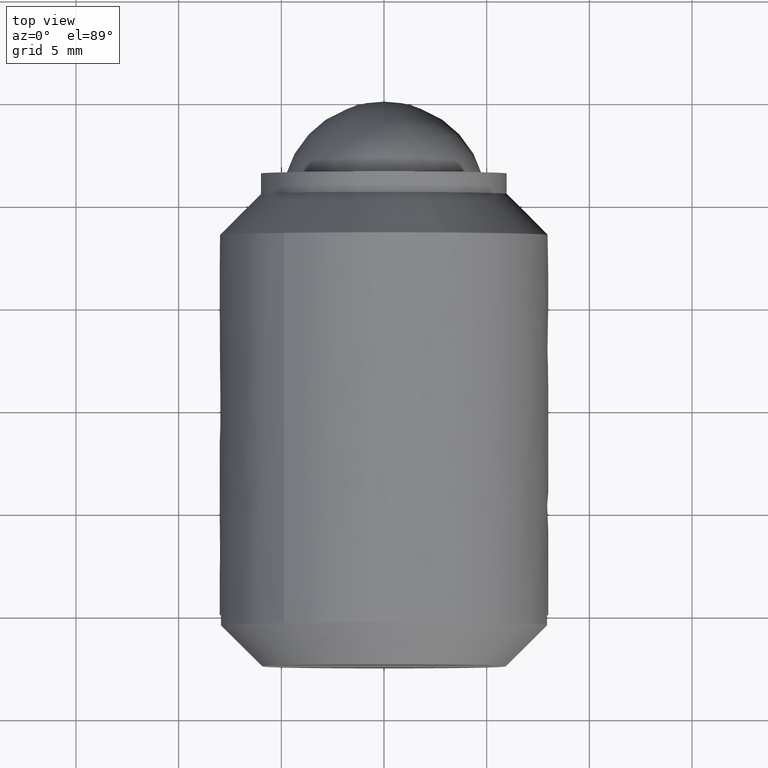
[diagram: clean part render]
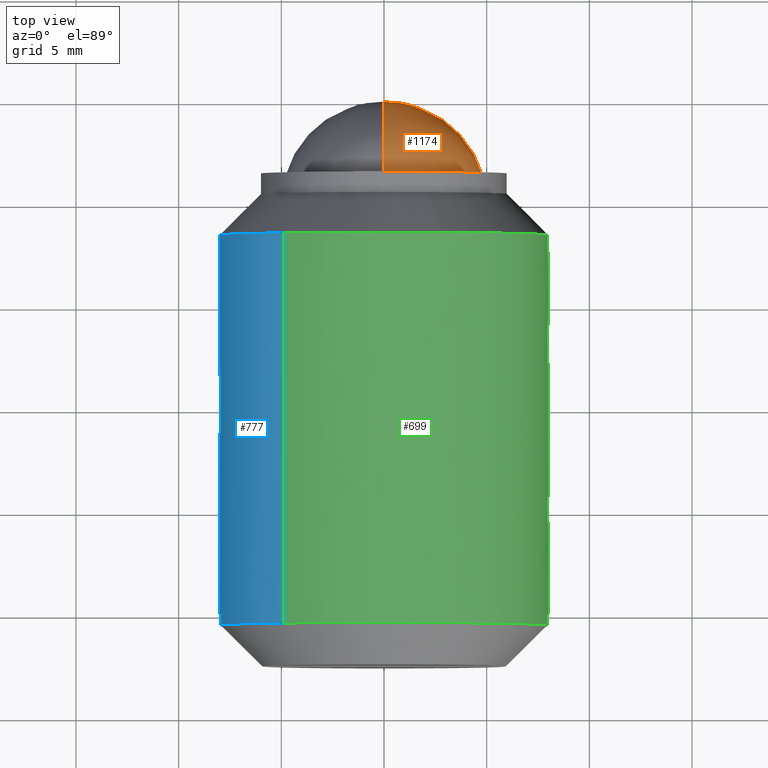
[diagram: same view with three faces highlighted in distinct colors, each labeled with its STEP entity id]
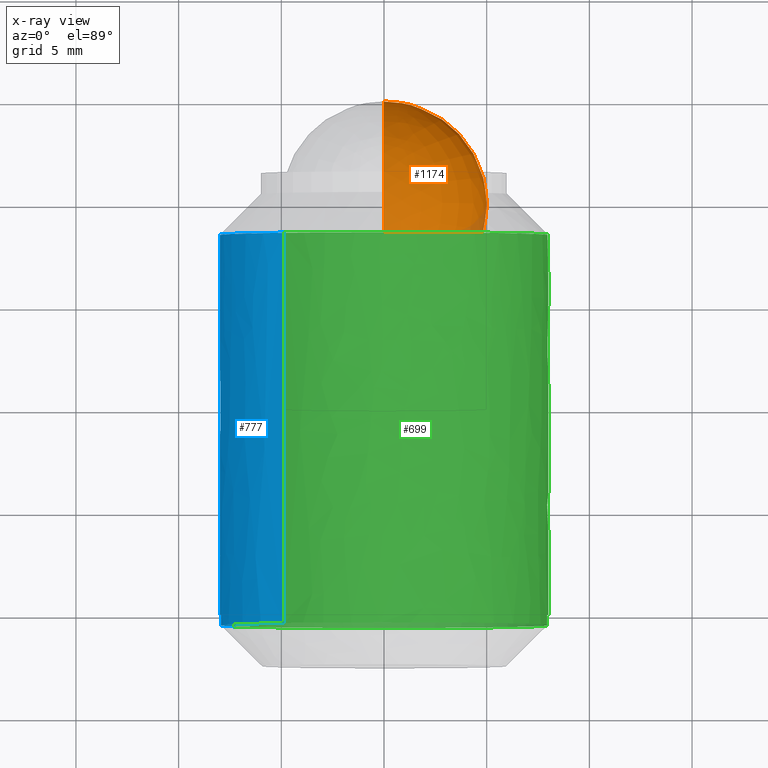
[diagram: x-ray of the same camera — body ghosted, the three highlighted faces saturated]
A machine part, top view with three faces highlighted in distinct colors.
The next image is the same camera in x-ray (body ghosted, the three faces saturated) — at least one of them is partly hidden behind the body in this view.
Their STEP definitions:

[orange] entity #1174 — the highlighted face is a freeform B-spline surface patch.
#1089=CARTESIAN_POINT('',(0.0,0.0,1.500143E-015));
#1090=VERTEX_POINT('',#1089);
#1091=CARTESIAN_POINT('',(0.0,-10.0,1.500143E-015));
#1092=VERTEX_POINT('',#1091);
#1093=CARTESIAN_POINT('',(0.0,0.0,1.500143E-015));
#1094=CARTESIAN_POINT('',(0.0,0.0,-4.999999999999997));
#1095=CARTESIAN_POINT('',(0.0,-5.0,-4.999999999999998));
#1096=CARTESIAN_POINT('',(0.0,-10.000000000000002,-4.999999999999997));
#1097=CARTESIAN_POINT('',(0.0,-10.0,1.500143E-015));
#1105=(BOUNDED_CURVE()B_SPLINE_CURVE(2,(#1093,#1094,#1095,#1096,#1097),.UNSPECIFIED.,.F.,.U.)B_SPLINE_CURVE_WITH_KNOTS((3,2,3),(0.0,0.500000000000000,1.0),.UNSPECIFIED.)CURVE()GEOMETRIC_REPRESENTATION_ITEM()RATIONAL_B_SPLINE_CURVE((1.0,0.707106781186548,1.0,0.707106781186548,1.0))REPRESENTATION_ITEM(''));
#1106=EDGE_CURVE('',#1090,#1092,#1105,.T.);
#1108=CARTESIAN_POINT('',(0.0,0.0,1.500143E-015));
#1109=CARTESIAN_POINT('',(0.0,0.0,5.000000000000002));
#1110=CARTESIAN_POINT('',(0.0,-5.0,5.000000000000002));
#1111=CARTESIAN_POINT('',(0.0,-10.000000000000002,5.000000000000002));
#1112=CARTESIAN_POINT('',(0.0,-10.0,1.500143E-015));
#1120=(BOUNDED_CURVE()B_SPLINE_CURVE(2,(#1108,#1109,#1110,#1111,#1112),.UNSPECIFIED.,.F.,.U.)B_SPLINE_CURVE_WITH_KNOTS((3,2,3),(0.0,0.500000000000000,1.0),.UNSPECIFIED.)CURVE()GEOMETRIC_REPRESENTATION_ITEM()RATIONAL_B_SPLINE_CURVE((1.0,0.707106781186548,1.0,0.707106781186548,1.0))REPRESENTATION_ITEM(''));
#1121=EDGE_CURVE('',#1090,#1092,#1120,.T.);
#1126=CARTESIAN_POINT('',(-1.875000000000000,-8.277527650531722,-3.277527650531722));
#1127=CARTESIAN_POINT('',(-1.226415094339623,-7.968326928783450,-3.957769238377928));
#1128=CARTESIAN_POINT('',(-0.238095238095238,-6.248581962107323,-4.994327848429291));
#1129=CARTESIAN_POINT('',(-0.238095238095238,-3.751418037892677,-4.994327848429291));
#1130=CARTESIAN_POINT('',(-1.226415094339623,-2.031673071216554,-3.957769238377928));
#1131=CARTESIAN_POINT('',(-1.875000000000000,-1.722472349468278,-3.277527650531722));
#1132=CARTESIAN_POINT('',(-1.226415094339623,-8.957769238377928,-2.968326928783446));
#1133=CARTESIAN_POINT('',(-0.238095238095238,-8.745745886321966,-3.745745886321967));
#1134=CARTESIAN_POINT('',(1.451612903225807,-6.691627174467986,-5.074881523403956));
#1135=CARTESIAN_POINT('',(1.451612903225807,-3.308372825532014,-5.074881523403956));
#1136=CARTESIAN_POINT('',(-0.238095238095238,-1.254254113678031,-3.745745886321967));
#1137=CARTESIAN_POINT('',(-1.226415094339623,-1.042230761622072,-2.968326928783446));
#1138=CARTESIAN_POINT('',(-0.238095238095238,-9.994327848429290,-1.248581962107321));
#1139=CARTESIAN_POINT('',(1.451612903225807,-10.074881523403961,-1.691627174467985));
#1140=CARTESIAN_POINT('',(4.999999999999998,-7.622022120425378,-2.622022120425377));
#1141=CARTESIAN_POINT('',(4.999999999999998,-2.377977879574622,-2.622022120425377));
#1142=CARTESIAN_POINT('',(1.451612903225807,0.074881523403958,-1.691627174467985));
#1143=CARTESIAN_POINT('',(-0.238095238095238,-0.005672151570709,-1.248581962107321));
#1144=CARTESIAN_POINT('',(-0.238095238095238,-9.994327848429290,1.248581962107325));
#1145=CARTESIAN_POINT('',(1.451612903225807,-10.074881523403961,1.691627174467988));
#1146=CARTESIAN_POINT('',(4.999999999999998,-7.622022120425378,2.622022120425380));
#1147=CARTESIAN_POINT('',(4.999999999999998,-2.377977879574622,2.622022120425380));
#1148=CARTESIAN_POINT('',(1.451612903225807,0.074881523403958,1.691627174467988));
#1149=CARTESIAN_POINT('',(-0.238095238095238,-0.005672151570709,1.248581962107325));
#1150=CARTESIAN_POINT('',(-1.226415094339623,-8.957769238377928,2.968326928783448));
#1151=CARTESIAN_POINT('',(-0.238095238095238,-8.745745886321966,3.745745886321970));
#1152=CARTESIAN_POINT('',(1.451612903225807,-6.691627174467986,5.074881523403960));
#1153=CARTESIAN_POINT('',(1.451612903225807,-3.308372825532014,5.074881523403960));
#1154=CARTESIAN_POINT('',(-0.238095238095238,-1.254254113678031,3.745745886321970));
#1155=CARTESIAN_POINT('',(-1.226415094339623,-1.042230761622072,2.968326928783448));
#1156=CARTESIAN_POINT('',(-1.875000000000000,-8.277527650531722,3.277527650531725));
#1157=CARTESIAN_POINT('',(-1.226415094339623,-7.968326928783450,3.957769238377932));
#1158=CARTESIAN_POINT('',(-0.238095238095238,-6.248581962107323,4.994327848429295));
#1159=CARTESIAN_POINT('',(-0.238095238095238,-3.751418037892677,4.994327848429295));
#1160=CARTESIAN_POINT('',(-1.226415094339623,-2.031673071216554,3.957769238377932));
#1161=CARTESIAN_POINT('',(-1.875000000000000,-1.722472349468278,3.277527650531725));
#1169=(BOUNDED_SURFACE()B_SPLINE_SURFACE(2,2,((#1126,#1132,#1138,#1144,#1150,#1156),(#1127,#1133,#1139,#1145,#1151,#1157),(#1128,#1134,#1140,#1146,#1152,#1158),(#1129,#1135,#1141,#1147,#1153,#1159),(#1130,#1136,#1142,#1148,#1154,#1160),(#1131,#1137,#1143,#1149,#1155,#1161)),.UNSPECIFIED.,.F.,.F.,.U.)B_SPLINE_SURFACE_WITH_KNOTS((3,1,1,1,3),(3,1,1,1,3),(0.0,4.610148783165501,9.220297566331002,13.830446349496500,18.440595132662001),(0.0,4.610148783165501,9.220297566331002,13.830446349496500,18.440595132662001),.UNSPECIFIED.)GEOMETRIC_REPRESENTATION_ITEM()RATIONAL_B_SPLINE_SURFACE(((3.200000000000000,2.650000000000000,2.100000000000000,2.100000000000000,2.650000000000000,3.200000000000000),(2.650000000000000,2.100000000000000,1.550000000000000,1.550000000000000,2.100000000000000,2.650000000000000),(2.100000000000000,1.550000000000000,1.0,1.0,1.550000000000000,2.100000000000000),(2.100000000000000,1.550000000000000,1.0,1.0,1.550000000000000,2.100000000000000),(2.650000000000000,2.100000000000000,1.550000000000000,1.550000000000000,2.100000000000000,2.650000000000000),(3.200000000000000,2.650000000000000,2.100000000000000,2.100000000000000,2.650000000000000,3.200000000000000)))REPRESENTATION_ITEM('')SURFACE());
#1170=ORIENTED_EDGE('',*,*,#1121,.T.);
#1171=ORIENTED_EDGE('',*,*,#1106,.F.);
#1172=EDGE_LOOP('',(#1170,#1171));
#1173=FACE_OUTER_BOUND('',#1172,.T.);
#1174=ADVANCED_FACE('',(#1173),#1169,.T.);

[blue] entity #777 — the highlighted face is a freeform B-spline surface patch.
#284=CARTESIAN_POINT('',(-7.985078387376499,-6.500000000002911,0.488388316301027));
#285=VERTEX_POINT('',#284);
#291=CARTESIAN_POINT('',(-4.870091037611219,-6.500000000000000,6.346827025008528));
#292=VERTEX_POINT('',#291);
#293=CARTESIAN_POINT('',(-4.870091037611219,-6.500000000000000,6.346827025008528));
#294=CARTESIAN_POINT('',(-7.762506972072580,-6.500000000000001,4.127398789254261));
#295=CARTESIAN_POINT('',(-7.985078387376499,-6.500000000002911,0.488388316301027));
#303=(BOUNDED_CURVE()B_SPLINE_CURVE(2,(#293,#294,#295),.UNSPECIFIED.,.F.,.U.)B_SPLINE_CURVE_WITH_KNOTS((3,3),(0.605220491557171,0.739332962241018),.UNSPECIFIED.)CURVE()GEOMETRIC_REPRESENTATION_ITEM()RATIONAL_B_SPLINE_CURVE((0.857220216439686,0.832357764713392,0.976072041671164))REPRESENTATION_ITEM(''));
#304=EDGE_CURVE('',#292,#285,#303,.T.);
#401=CARTESIAN_POINT('',(-7.310556275005265,-6.500000000000000,-3.248963981022425));
#402=VERTEX_POINT('',#401);
#416=CARTESIAN_POINT('',(-7.985078387376499,-6.500000000002911,0.488388316301027));
#417=CARTESIAN_POINT('',(-8.0,-6.500000000000000,0.244422106410766));
#418=CARTESIAN_POINT('',(-8.0,-6.500000000000000,-1.806294E-015));
#419=CARTESIAN_POINT('',(-8.0,-6.500000000000001,-1.697633287639437));
#420=CARTESIAN_POINT('',(-7.310556275005265,-6.500000000000000,-3.248963981022425));
#428=(BOUNDED_CURVE()B_SPLINE_CURVE(2,(#416,#417,#418,#419,#420),.UNSPECIFIED.,.F.,.U.)B_SPLINE_CURVE_WITH_KNOTS((3,2,3),(0.739332962241018,0.750000000000000,0.818963736983760),.UNSPECIFIED.)CURVE()GEOMETRIC_REPRESENTATION_ITEM()RATIONAL_B_SPLINE_CURVE((0.976072041671165,0.987502787902268,1.0,0.919203956373688,0.882983889563164))REPRESENTATION_ITEM(''));
#429=EDGE_CURVE('',#285,#402,#428,.T.);
#622=CARTESIAN_POINT('',(-4.870091377275460,-25.500000000000000,6.346826764375027));
#623=VERTEX_POINT('',#622);
#624=CARTESIAN_POINT('',(-4.870091037611219,-6.500000000000000,6.346827025008528));
#625=CARTESIAN_POINT('',(-4.870091377275460,-25.500000000000000,6.346826764375027));
#626=QUASI_UNIFORM_CURVE('',1,(#624,#625),.UNSPECIFIED.,.F.,.U.);
#627=EDGE_CURVE('',#292,#623,#626,.T.);
#675=CARTESIAN_POINT('',(-7.310557780470655,-25.500000000000000,-3.248960593541331));
#676=VERTEX_POINT('',#675);
#692=CARTESIAN_POINT('',(-7.310556275005265,-6.500000000000000,-3.248963981022425));
#693=CARTESIAN_POINT('',(-7.310557780470655,-25.500000000000000,-3.248960593541331));
#694=QUASI_UNIFORM_CURVE('',1,(#692,#693),.UNSPECIFIED.,.F.,.U.);
#695=EDGE_CURVE('',#402,#676,#694,.T.);
#700=CARTESIAN_POINT('',(-4.870091432069762,-6.024999999999999,6.346826722329879));
#701=CARTESIAN_POINT('',(-9.870057291562189,-6.025000000000000,2.510217979367925));
#702=CARTESIAN_POINT('',(-7.310556180406904,-6.024999999999999,-3.248964193880011));
#703=CARTESIAN_POINT('',(-4.870091432069762,-25.986875000000001,6.346826722329879));
#704=CARTESIAN_POINT('',(-9.870057291562189,-25.986875000000005,2.510217979367925));
#705=CARTESIAN_POINT('',(-7.310556180406904,-25.986875000000001,-3.248964193880011));
#713=(BOUNDED_SURFACE()B_SPLINE_SURFACE(2,1,((#700,#703),(#701,#704),(#702,#705)),.UNSPECIFIED.,.F.,.F.,.U.)B_SPLINE_SURFACE_WITH_KNOTS((3,3),(2,2),(0.0,11.085370664284779),(0.0,19.961874999999999),.UNSPECIFIED.)GEOMETRIC_REPRESENTATION_ITEM()RATIONAL_B_SPLINE_SURFACE(((1.0,1.0),(0.753969696196700,0.753969696196700),(0.921270302782944,0.921270302782944)))REPRESENTATION_ITEM('')SURFACE());
#714=ORIENTED_EDGE('',*,*,#304,.T.);
#715=ORIENTED_EDGE('',*,*,#429,.T.);
#716=ORIENTED_EDGE('',*,*,#695,.T.);
#717=CARTESIAN_POINT('',(-7.937253933193770,-25.500000000000000,-1.0));
#718=VERTEX_POINT('',#717);
#719=CARTESIAN_POINT('',(-7.937253933193772,-25.500000000000000,-1.000000000000001));
#720=CARTESIAN_POINT('',(-7.789759942857692,-25.500000000000004,-2.170697254917499));
#721=CARTESIAN_POINT('',(-7.310557780470655,-25.500000000000000,-3.248960593541332));
#729=(BOUNDED_CURVE()B_SPLINE_CURVE(2,(#719,#720,#721),.UNSPECIFIED.,.F.,.U.)B_SPLINE_CURVE_WITH_KNOTS((3,3),(0.0,0.105607617248739),.UNSPECIFIED.)CURVE()GEOMETRIC_REPRESENTATION_ITEM()RATIONAL_B_SPLINE_CURVE((1.0,0.947196191375630,0.916698320393173))REPRESENTATION_ITEM(''));
#730=EDGE_CURVE('',#718,#676,#729,.T.);
#731=ORIENTED_EDGE('',*,*,#730,.F.);
#732=CARTESIAN_POINT('',(-7.937253933193770,-25.0,-1.0));
#733=VERTEX_POINT('',#732);
#734=CARTESIAN_POINT('',(-7.937253933193770,-25.0,-1.0));
#735=CARTESIAN_POINT('',(-7.937253933193770,-25.500000000000000,-1.0));
#736=QUASI_UNIFORM_CURVE('',1,(#734,#735),.UNSPECIFIED.,.F.,.U.);
#737=EDGE_CURVE('',#733,#718,#736,.T.);
#738=ORIENTED_EDGE('',*,*,#737,.F.);
#739=CARTESIAN_POINT('',(-7.937253933193770,-25.0,1.0));
#740=VERTEX_POINT('',#739);
#741=CARTESIAN_POINT('',(-7.937253933193772,-25.0,1.000000000000001));
#742=CARTESIAN_POINT('',(-8.063242090863515,-24.999999999999996,1.084202E-015));
#743=CARTESIAN_POINT('',(-7.937253933193772,-25.0,-1.000000000000000));
#751=(BOUNDED_CURVE()B_SPLINE_CURVE(2,(#741,#742,#743),.UNSPECIFIED.,.F.,.U.)CURVE()GEOMETRIC_REPRESENTATION_ITEM()QUASI_UNIFORM_CURVE()RATIONAL_B_SPLINE_CURVE((1.0,0.992156741649221,1.0))REPRESENTATION_ITEM(''));
#752=EDGE_CURVE('',#740,#733,#751,.T.);
#753=ORIENTED_EDGE('',*,*,#752,.F.);
#754=CARTESIAN_POINT('',(-7.937253933193770,-25.500000000000000,1.0));
#755=VERTEX_POINT('',#754);
#756=CARTESIAN_POINT('',(-7.937253933193770,-25.0,1.0));
#757=CARTESIAN_POINT('',(-7.937253933193770,-25.500000000000000,1.0));
#758=QUASI_UNIFORM_CURVE('',1,(#756,#757),.UNSPECIFIED.,.F.,.U.);
#759=EDGE_CURVE('',#740,#755,#758,.T.);
#760=ORIENTED_EDGE('',*,*,#759,.T.);
#761=CARTESIAN_POINT('',(-4.870091377275460,-25.500000000000004,6.346826764375028));
#762=CARTESIAN_POINT('',(-7.519772659777563,-25.500000000000007,4.313654879457524));
#763=CARTESIAN_POINT('',(-7.937253933193772,-25.500000000000000,1.0));
#771=(BOUNDED_CURVE()B_SPLINE_CURVE(2,(#761,#762,#763),.UNSPECIFIED.,.F.,.U.)B_SPLINE_CURVE_WITH_KNOTS((3,3),(0.727424371635832,1.0),.UNSPECIFIED.)CURVE()GEOMETRIC_REPRESENTATION_ITEM()RATIONAL_B_SPLINE_CURVE((0.876019317906473,0.863712185723817,1.0))REPRESENTATION_ITEM(''));
#772=EDGE_CURVE('',#623,#755,#771,.T.);
#773=ORIENTED_EDGE('',*,*,#772,.F.);
#774=ORIENTED_EDGE('',*,*,#627,.F.);
#775=EDGE_LOOP('',(#714,#715,#716,#731,#738,#753,#760,#773,#774));
#776=FACE_OUTER_BOUND('',#775,.T.);
#777=ADVANCED_FACE('',(#776),#713,.T.);

[green] entity #699 — the highlighted face is a freeform B-spline surface patch.
#291=CARTESIAN_POINT('',(-4.870091037611219,-6.500000000000000,6.346827025008528));
#292=VERTEX_POINT('',#291);
#306=CARTESIAN_POINT('',(0.0,-6.500000000000000,7.999999999999998));
#307=VERTEX_POINT('',#306);
#308=CARTESIAN_POINT('',(0.0,-6.500000000000000,7.999999999999998));
#309=CARTESIAN_POINT('',(-2.715633516410479,-6.499999999999999,7.999999999999999));
#310=CARTESIAN_POINT('',(-4.870091037611219,-6.500000000000000,6.346827025008528));
#318=(BOUNDED_CURVE()B_SPLINE_CURVE(2,(#308,#309,#310),.UNSPECIFIED.,.F.,.U.)B_SPLINE_CURVE_WITH_KNOTS((3,3),(0.500000000000000,0.605220491557170),.UNSPECIFIED.)CURVE()GEOMETRIC_REPRESENTATION_ITEM()RATIONAL_B_SPLINE_CURVE((1.0,0.876726526170748,0.857220216439686))REPRESENTATION_ITEM(''));
#319=EDGE_CURVE('',#307,#292,#318,.T.);
#321=CARTESIAN_POINT('',(2.812943795133173,-6.500000000000057,7.489148630213096));
#322=VERTEX_POINT('',#321);
#323=CARTESIAN_POINT('',(2.812943795133174,-6.500000000000057,7.489148630213097));
#324=CARTESIAN_POINT('',(1.452859088534721,-6.500000000000001,7.999999999999997));
#325=CARTESIAN_POINT('',(0.0,-6.500000000000000,7.999999999999998));
#333=(BOUNDED_CURVE()B_SPLINE_CURVE(2,(#323,#324,#325),.UNSPECIFIED.,.F.,.U.)B_SPLINE_CURVE_WITH_KNOTS((3,3),(0.440284170898885,0.500000000000000),.UNSPECIFIED.)CURVE()GEOMETRIC_REPRESENTATION_ITEM()RATIONAL_B_SPLINE_CURVE((0.893499554635736,0.930038554401842,1.0))REPRESENTATION_ITEM(''));
#334=EDGE_CURVE('',#322,#307,#333,.T.);
#384=CARTESIAN_POINT('',(0.0,-6.500000000000000,-8.000000000000002));
#385=VERTEX_POINT('',#384);
#386=CARTESIAN_POINT('',(0.0,-6.500000000000000,-8.000000000000002));
#387=CARTESIAN_POINT('',(8.0,-6.500000000000001,-8.000000000000002));
#388=CARTESIAN_POINT('',(8.0,-6.500000000000000,-1.806294E-015));
#389=CARTESIAN_POINT('',(8.0,-6.500000000000000,5.540876765554441));
#390=CARTESIAN_POINT('',(2.812943795133173,-6.500000000000057,7.489148630213096));
#398=(BOUNDED_CURVE()B_SPLINE_CURVE(2,(#386,#387,#388,#389,#390),.UNSPECIFIED.,.F.,.U.)B_SPLINE_CURVE_WITH_KNOTS((3,2,3),(0.0,0.250000000000000,0.440284170898885),.UNSPECIFIED.)CURVE()GEOMETRIC_REPRESENTATION_ITEM()RATIONAL_B_SPLINE_CURVE((1.0,0.707106781186548,1.0,0.777068226784706,0.893499554635736))REPRESENTATION_ITEM(''));
#399=EDGE_CURVE('',#385,#322,#398,.T.);
#401=CARTESIAN_POINT('',(-7.310556275005265,-6.500000000000000,-3.248963981022425));
#402=VERTEX_POINT('',#401);
#403=CARTESIAN_POINT('',(-7.310556275005265,-6.500000000000001,-3.248963981022424));
#404=CARTESIAN_POINT('',(-5.199096749012838,-6.500000000000000,-8.000000000000002));
#405=CARTESIAN_POINT('',(0.0,-6.500000000000000,-8.000000000000002));
#413=(BOUNDED_CURVE()B_SPLINE_CURVE(2,(#403,#404,#405),.UNSPECIFIED.,.F.,.U.)B_SPLINE_CURVE_WITH_KNOTS((3,3),(0.818963736983759,1.0),.UNSPECIFIED.)CURVE()GEOMETRIC_REPRESENTATION_ITEM()RATIONAL_B_SPLINE_CURVE((0.882983889563165,0.787902824812858,1.0))REPRESENTATION_ITEM(''));
#414=EDGE_CURVE('',#402,#385,#413,.T.);
#592=CARTESIAN_POINT('',(-7.310556180406904,-6.024999999999999,-3.248964193880011));
#593=CARTESIAN_POINT('',(-6.924905108886705,-6.025000000000000,-4.116725011217804));
#594=CARTESIAN_POINT('',(-6.346826722329880,-6.024999999999999,-4.870091432069764));
#595=CARTESIAN_POINT('',(-1.476735290260119,-6.024999999999999,-11.216918154399643));
#596=CARTESIAN_POINT('',(4.870091432069762,-6.024999999999999,-6.346826722329882));
#597=CARTESIAN_POINT('',(11.216918154399643,-6.024999999999999,-1.476735290260121));
#598=CARTESIAN_POINT('',(6.346826722329880,-6.024999999999999,4.870091432069760));
#599=CARTESIAN_POINT('',(1.476735290260119,-6.024999999999999,11.216918154399639));
#600=CARTESIAN_POINT('',(-4.870091432069762,-6.024999999999999,6.346826722329879));
#601=CARTESIAN_POINT('',(-7.310556180406904,-25.986875000000001,-3.248964193880011));
#602=CARTESIAN_POINT('',(-6.924905108886705,-25.986875000000005,-4.116725011217804));
#603=CARTESIAN_POINT('',(-6.346826722329880,-25.986875000000001,-4.870091432069764));
#604=CARTESIAN_POINT('',(-1.476735290260119,-25.986874999999994,-11.216918154399643));
#605=CARTESIAN_POINT('',(4.870091432069762,-25.986875000000001,-6.346826722329882));
#606=CARTESIAN_POINT('',(11.216918154399643,-25.986874999999994,-1.476735290260121));
#607=CARTESIAN_POINT('',(6.346826722329880,-25.986875000000001,4.870091432069760));
#608=CARTESIAN_POINT('',(1.476735290260119,-25.986874999999994,11.216918154399639));
#609=CARTESIAN_POINT('',(-4.870091432069762,-25.986875000000001,6.346826722329879));
#617=(BOUNDED_SURFACE()B_SPLINE_SURFACE(2,1,((#592,#601),(#593,#602),(#594,#603),(#595,#604),(#596,#605),(#597,#606),(#598,#607),(#599,#608),(#600,#609)),.UNSPECIFIED.,.F.,.F.,.U.)B_SPLINE_SURFACE_WITH_KNOTS((3,2,2,2,3),(2,2),(0.0,2.120773439350248,15.375607435289290,28.630441431228331,41.885275427167372),(0.0,19.961875000000010),.UNSPECIFIED.)GEOMETRIC_REPRESENTATION_ITEM()RATIONAL_B_SPLINE_SURFACE(((0.921270302782944,0.921270302782944),(0.953137084989848,0.953137084989848),(1.0,1.0),(0.707106781186548,0.707106781186548),(1.0,1.0),(0.707106781186548,0.707106781186548),(1.0,1.0),(0.707106781186548,0.707106781186548),(1.0,1.0)))REPRESENTATION_ITEM('')SURFACE());
#618=ORIENTED_EDGE('',*,*,#414,.T.);
#619=ORIENTED_EDGE('',*,*,#399,.T.);
#620=ORIENTED_EDGE('',*,*,#334,.T.);
#621=ORIENTED_EDGE('',*,*,#319,.T.);
#622=CARTESIAN_POINT('',(-4.870091377275460,-25.500000000000000,6.346826764375027));
#623=VERTEX_POINT('',#622);
#624=CARTESIAN_POINT('',(-4.870091037611219,-6.500000000000000,6.346827025008528));
#625=CARTESIAN_POINT('',(-4.870091377275460,-25.500000000000000,6.346826764375027));
#626=QUASI_UNIFORM_CURVE('',1,(#624,#625),.UNSPECIFIED.,.F.,.U.);
#627=EDGE_CURVE('',#292,#623,#626,.T.);
#628=ORIENTED_EDGE('',*,*,#627,.T.);
#629=CARTESIAN_POINT('',(7.937253999999999,-25.500000000000000,1.0));
#630=VERTEX_POINT('',#629);
#631=CARTESIAN_POINT('',(7.937253999999999,-25.500000000000000,1.0));
#632=CARTESIAN_POINT('',(7.055336837392421,-25.500000000000007,7.999999996317649));
#633=CARTESIAN_POINT('',(4.175392E-009,-25.500000000000000,7.999999999999998));
#634=CARTESIAN_POINT('',(-2.715633992034666,-25.499999999999996,8.000000001417353));
#635=CARTESIAN_POINT('',(-4.870091377275460,-25.500000000000004,6.346826764375028));
#643=(BOUNDED_CURVE()B_SPLINE_CURVE(2,(#631,#632,#633,#634,#635),.UNSPECIFIED.,.F.,.U.)B_SPLINE_CURVE_WITH_KNOTS((3,2,3),(0.0,0.500000000000000,0.727424371635832),.UNSPECIFIED.)CURVE()GEOMETRIC_REPRESENTATION_ITEM()RATIONAL_B_SPLINE_CURVE((1.0,0.749999999827390,1.0,0.886287814103573,0.876019317906473))REPRESENTATION_ITEM(''));
#644=EDGE_CURVE('',#630,#623,#643,.T.);
#645=ORIENTED_EDGE('',*,*,#644,.F.);
#646=CARTESIAN_POINT('',(7.937253999999999,-25.0,1.0));
#647=VERTEX_POINT('',#646);
#648=CARTESIAN_POINT('',(7.937253999999999,-25.0,1.0));
#649=CARTESIAN_POINT('',(7.937253999999999,-25.500000000000000,1.0));
#650=QUASI_UNIFORM_CURVE('',1,(#648,#649),.UNSPECIFIED.,.F.,.U.);
#651=EDGE_CURVE('',#647,#630,#650,.T.);
#652=ORIENTED_EDGE('',*,*,#651,.F.);
#653=CARTESIAN_POINT('',(7.937253933193770,-25.0,-1.0));
#654=VERTEX_POINT('',#653);
#655=CARTESIAN_POINT('',(7.937253933193772,-25.0,-1.000000000000002));
#656=CARTESIAN_POINT('',(8.063242090333306,-25.000000000000004,-4.208403E-009));
#657=CARTESIAN_POINT('',(7.937253999999999,-25.0,1.0));
#665=(BOUNDED_CURVE()B_SPLINE_CURVE(2,(#655,#656,#657),.UNSPECIFIED.,.F.,.U.)CURVE()GEOMETRIC_REPRESENTATION_ITEM()QUASI_UNIFORM_CURVE()RATIONAL_B_SPLINE_CURVE((1.0,0.992156741714462,1.0))REPRESENTATION_ITEM(''));
#666=EDGE_CURVE('',#654,#647,#665,.T.);
#667=ORIENTED_EDGE('',*,*,#666,.F.);
#668=CARTESIAN_POINT('',(7.937253933193770,-25.500000000000000,-1.0));
#669=VERTEX_POINT('',#668);
#670=CARTESIAN_POINT('',(7.937253933193770,-25.0,-1.0));
#671=CARTESIAN_POINT('',(7.937253933193770,-25.500000000000000,-1.0));
#672=QUASI_UNIFORM_CURVE('',1,(#670,#671),.UNSPECIFIED.,.F.,.U.);
#673=EDGE_CURVE('',#654,#669,#672,.T.);
#674=ORIENTED_EDGE('',*,*,#673,.T.);
#675=CARTESIAN_POINT('',(-7.310557780470655,-25.500000000000000,-3.248960593541331));
#676=VERTEX_POINT('',#675);
#677=CARTESIAN_POINT('',(-7.310557780470655,-25.500000000000000,-3.248960593541332));
#678=CARTESIAN_POINT('',(-5.199099219651420,-25.499999999999996,-8.000000000000002));
#679=CARTESIAN_POINT('',(0.0,-25.500000000000000,-8.000000000000002));
#680=CARTESIAN_POINT('',(7.055336829505573,-25.500000000000000,-8.000000000000002));
#681=CARTESIAN_POINT('',(7.937253933193772,-25.500000000000000,-1.000000000000005));
#689=(BOUNDED_CURVE()B_SPLINE_CURVE(2,(#677,#678,#679,#680,#681),.UNSPECIFIED.,.F.,.U.)B_SPLINE_CURVE_WITH_KNOTS((3,2,3),(0.105607617248739,0.500000000000000,1.0),.UNSPECIFIED.)CURVE()GEOMETRIC_REPRESENTATION_ITEM()RATIONAL_B_SPLINE_CURVE((0.916698320393173,0.802803808624370,1.0,0.750000000000000,1.0))REPRESENTATION_ITEM(''));
#690=EDGE_CURVE('',#676,#669,#689,.T.);
#691=ORIENTED_EDGE('',*,*,#690,.F.);
#692=CARTESIAN_POINT('',(-7.310556275005265,-6.500000000000000,-3.248963981022425));
#693=CARTESIAN_POINT('',(-7.310557780470655,-25.500000000000000,-3.248960593541331));
#694=QUASI_UNIFORM_CURVE('',1,(#692,#693),.UNSPECIFIED.,.F.,.U.);
#695=EDGE_CURVE('',#402,#676,#694,.T.);
#696=ORIENTED_EDGE('',*,*,#695,.F.);
#697=EDGE_LOOP('',(#618,#619,#620,#621,#628,#645,#652,#667,#674,#691,#696));
#698=FACE_OUTER_BOUND('',#697,.T.);
#699=ADVANCED_FACE('',(#698),#617,.T.);